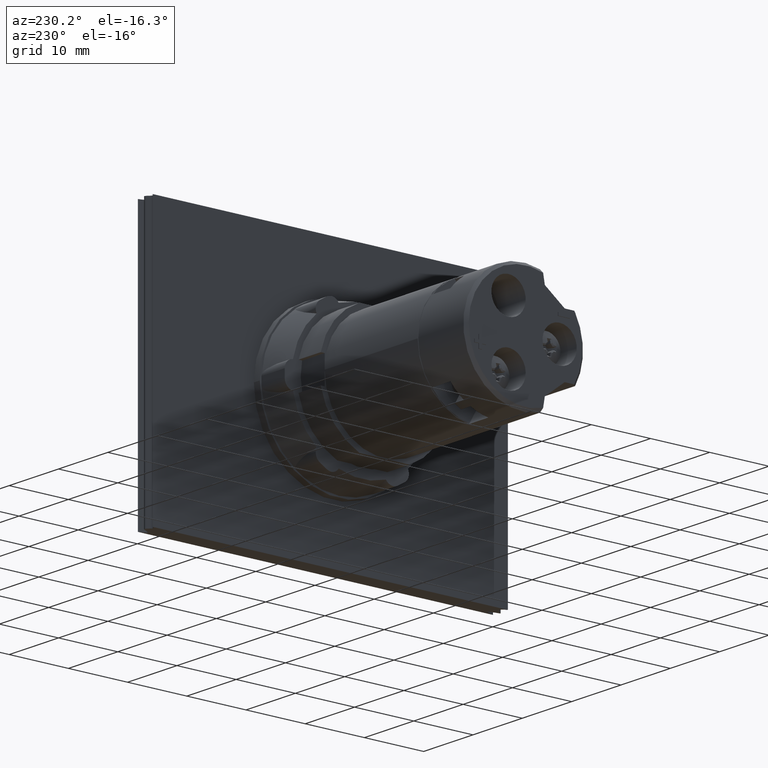
[diagram: clean part render]
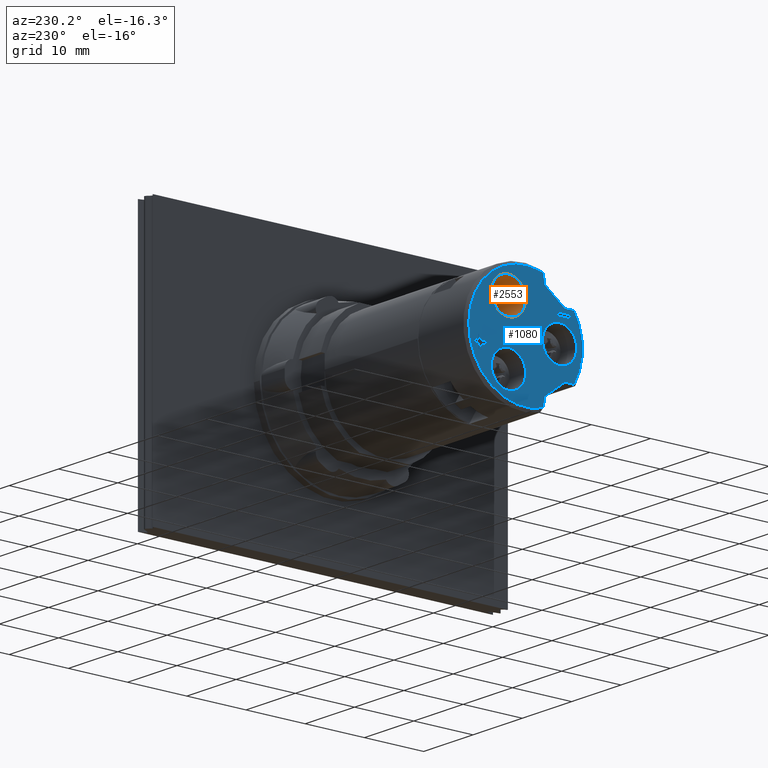
[diagram: same view with the hole feature highlighted: cylindrical wall and planar end face, labeled with their STEP entity ids]
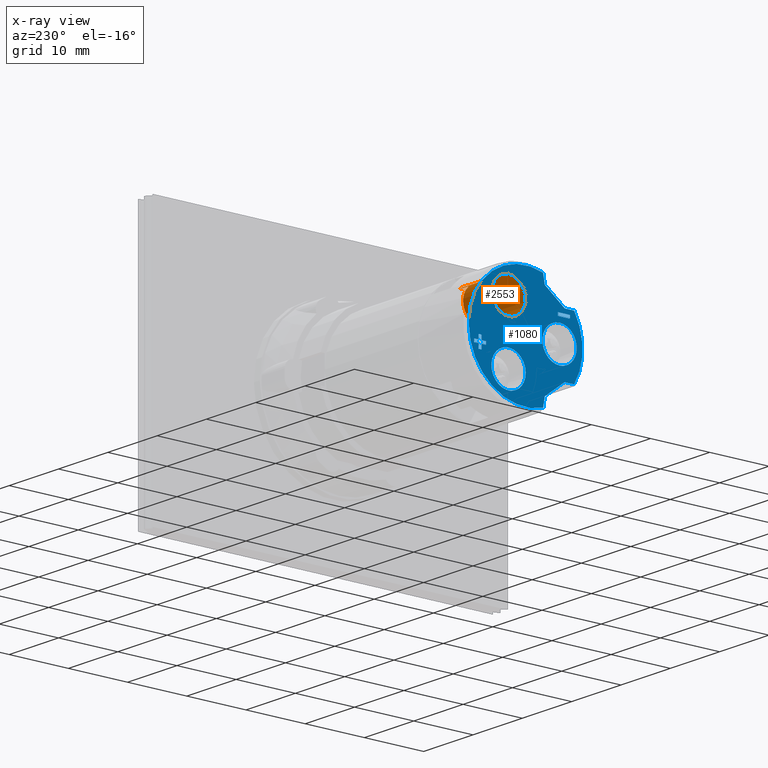
[diagram: x-ray of the same camera — body ghosted, the hole faces saturated]
A machine part, auxiliary view. The highlighted faces form one hole feature of diameter 5.8 mm: the cylindrical wall (entity #2553, orange) and its adjacent planar end face (entity #1080, blue) — they share a circular edge in the B-rep.
The next image is the same camera in x-ray (body ghosted, the hole faces saturated) — the bore reads through the body.
Wall:
#1058=CARTESIAN_POINT('',(-43.122597079042571,5.314369067198075,2.943179130196207));
#1059=VERTEX_POINT('',#1058);
#1060=CARTESIAN_POINT('',(-43.122597079042571,3.249713552126450,4.979646071760523));
#1061=DIRECTION('',(1.0,0.0,0.0));
#1062=DIRECTION('',(0.0,0.0,1.0));
#1063=AXIS2_PLACEMENT_3D('',#1060,#1061,#1062);
#1064=CIRCLE('',#1063,2.900000000000000);
#1065=EDGE_CURVE('',#1059,#1059,#1064,.T.);
#1287=CARTESIAN_POINT('',(-37.372597079040830,5.187954890309383,7.136778546820604));
#1288=VERTEX_POINT('',#1287);
#1289=CARTESIAN_POINT('',(-35.472597079040831,5.187954890309220,7.136778546820750));
#1290=VERTEX_POINT('',#1289);
#1291=CARTESIAN_POINT('',(-37.372597079040830,5.187954890309383,7.136778546820604));
#1292=DIRECTION('',(1.0,0.0,0.0));
#1293=VECTOR('',#1292,1.899999999999999);
#1294=LINE('',#1291,#1293);
#1295=EDGE_CURVE('',#1288,#1290,#1294,.T.);
#1327=CARTESIAN_POINT('',(-35.472597079041940,2.350702698487272,2.222513596698986));
#1328=VERTEX_POINT('',#1327);
#1329=CARTESIAN_POINT('',(-37.372597079041931,2.350702698487480,2.222513596698918));
#1330=VERTEX_POINT('',#1329);
#1331=CARTESIAN_POINT('',(-35.472597079041940,2.350702698487272,2.222513596698986));
#1332=DIRECTION('',(-1.0,1.091525E-013,-3.576087E-014));
#1333=VECTOR('',#1332,1.899999999999992);
#1334=LINE('',#1331,#1333);
#1335=EDGE_CURVE('',#1328,#1330,#1334,.T.);
#1358=CARTESIAN_POINT('',(-35.472597079040966,4.148724405768168,7.736778546821230));
#1359=VERTEX_POINT('',#1358);
#1360=CARTESIAN_POINT('',(-37.372597079040958,4.148724405768375,7.736778546821163));
#1361=VERTEX_POINT('',#1360);
#1362=CARTESIAN_POINT('',(-35.472597079040966,4.148724405768168,7.736778546821230));
#1363=DIRECTION('',(-1.0,1.089187E-013,-3.552714E-014));
#1364=VECTOR('',#1363,1.899999999999992);
#1365=LINE('',#1362,#1364);
#1366=EDGE_CURVE('',#1359,#1361,#1365,.T.);
#1398=CARTESIAN_POINT('',(-37.372597079042073,1.311472213945830,2.822513596698363));
#1399=VERTEX_POINT('',#1398);
#1400=CARTESIAN_POINT('',(-35.472597079042075,1.311472213945668,2.822513596698508));
#1401=VERTEX_POINT('',#1400);
#1402=CARTESIAN_POINT('',(-37.372597079042073,1.311472213945830,2.822513596698363));
#1403=DIRECTION('',(1.0,0.0,0.0));
#1404=VECTOR('',#1403,1.899999999999999);
#1405=LINE('',#1402,#1404);
#1406=EDGE_CURVE('',#1399,#1401,#1405,.T.);
#1429=CARTESIAN_POINT('',(-35.472597079040533,3.249713552126450,4.979646071760523));
#1430=DIRECTION('',(1.0,-1.985831E-013,0.0));
#1431=DIRECTION('',(0.0,0.0,1.0));
#1432=AXIS2_PLACEMENT_3D('',#1429,#1430,#1431);
#1433=CIRCLE('',#1432,2.900000000000000);
#1434=EDGE_CURVE('',#1290,#1359,#1433,.T.);
#1453=CARTESIAN_POINT('',(-35.472597079040533,3.249713552126450,4.979646071760523));
#1454=DIRECTION('',(1.0,-1.985831E-013,0.0));
#1455=DIRECTION('',(0.0,0.0,1.0));
#1456=AXIS2_PLACEMENT_3D('',#1453,#1454,#1455);
#1457=CIRCLE('',#1456,2.900000000000000);
#1458=EDGE_CURVE('',#1401,#1328,#1457,.T.);
#1582=CARTESIAN_POINT('',(-37.372597079040531,3.249713552126450,4.979646071760523));
#1583=DIRECTION('',(1.0,-1.953782E-013,0.0));
#1584=DIRECTION('',(0.0,0.0,1.0));
#1585=AXIS2_PLACEMENT_3D('',#1582,#1583,#1584);
#1586=CIRCLE('',#1585,2.900000000000000);
#1587=EDGE_CURVE('',#1330,#1288,#1586,.T.);
#1938=CARTESIAN_POINT('',(-37.372597079040666,3.249713552126450,4.979646071760523));
#1939=DIRECTION('',(1.0,-1.953782E-013,0.0));
#1940=DIRECTION('',(0.0,0.0,1.0));
#1941=AXIS2_PLACEMENT_3D('',#1938,#1939,#1940);
#1942=CIRCLE('',#1941,2.900000000000000);
#1943=EDGE_CURVE('',#1361,#1399,#1942,.T.);
#2535=CARTESIAN_POINT('',(-43.122597079042571,3.249713552126450,4.979646071760523));
#2536=DIRECTION('',(1.0,0.0,0.0));
#2537=DIRECTION('',(0.0,0.0,1.0));
#2538=AXIS2_PLACEMENT_3D('',#2535,#2536,#2537);
#2539=CYLINDRICAL_SURFACE('',#2538,2.900000000000000);
#2540=ORIENTED_EDGE('',*,*,#1295,.T.);
#2541=ORIENTED_EDGE('',*,*,#1434,.T.);
#2542=ORIENTED_EDGE('',*,*,#1366,.T.);
#2543=ORIENTED_EDGE('',*,*,#1943,.T.);
#2544=ORIENTED_EDGE('',*,*,#1406,.T.);
#2545=ORIENTED_EDGE('',*,*,#1458,.T.);
#2546=ORIENTED_EDGE('',*,*,#1335,.T.);
#2547=ORIENTED_EDGE('',*,*,#1587,.T.);
#2548=EDGE_LOOP('',(#2540,#2541,#2542,#2543,#2544,#2545,#2546,#2547));
#2549=FACE_OUTER_BOUND('',#2548,.T.);
#2550=ORIENTED_EDGE('',*,*,#1065,.F.);
#2551=EDGE_LOOP('',(#2550));
#2552=FACE_BOUND('',#2551,.T.);
#2553=ADVANCED_FACE('',(#2549,#2552),#2539,.F.);
End face:
#153=CARTESIAN_POINT('',(-43.122597079042571,-5.077700565510162,4.261579395205214));
#154=VERTEX_POINT('',#153);
#161=CARTESIAN_POINT('',(-43.122597079042571,-5.077700565510162,3.761579395205214));
#162=VERTEX_POINT('',#161);
#163=CARTESIAN_POINT('',(-43.122597079042571,-5.077700565510162,3.761579395205214));
#164=DIRECTION('',(0.0,0.0,1.0));
#165=VECTOR('',#164,0.500000000000000);
#166=LINE('',#163,#165);
#167=EDGE_CURVE('',#162,#154,#166,.T.);
#184=CARTESIAN_POINT('',(-43.122597079042571,-7.077700565510162,4.261579395205214));
#185=VERTEX_POINT('',#184);
#192=CARTESIAN_POINT('',(-43.122597079042571,-5.077700565510162,4.261579395205214));
#193=DIRECTION('',(0.0,-1.0,0.0));
#194=VECTOR('',#193,2.0);
#195=LINE('',#192,#194);
#196=EDGE_CURVE('',#154,#185,#195,.T.);
#208=CARTESIAN_POINT('',(-43.122597079042571,-7.077700565510162,3.761579395205215));
#209=VERTEX_POINT('',#208);
#216=CARTESIAN_POINT('',(-43.122597079042571,-7.077700565510162,4.261579395205214));
#217=DIRECTION('',(0.0,0.0,-1.0));
#218=VECTOR('',#217,0.499999999999999);
#219=LINE('',#216,#218);
#220=EDGE_CURVE('',#185,#209,#219,.T.);
#233=CARTESIAN_POINT('',(-43.122597079042571,-7.077700565510162,3.761579395205215));
#234=DIRECTION('',(0.0,1.0,0.0));
#235=VECTOR('',#234,2.0);
#236=LINE('',#233,#235);
#237=EDGE_CURVE('',#209,#162,#236,.T.);
#258=CARTESIAN_POINT('',(-43.122597079042571,8.316991298642124,-1.939546860514058));
#259=VERTEX_POINT('',#258);
#266=CARTESIAN_POINT('',(-43.122597079042571,9.066991298642124,-1.939546860514059));
#267=VERTEX_POINT('',#266);
#268=CARTESIAN_POINT('',(-43.122597079042571,9.066991298642124,-1.939546860514059));
#269=DIRECTION('',(0.0,-1.0,0.0));
#270=VECTOR('',#269,0.750000000000000);
#271=LINE('',#268,#270);
#272=EDGE_CURVE('',#267,#259,#271,.T.);
#297=CARTESIAN_POINT('',(-43.122597079042571,9.066991298642124,-2.439546860514056));
#298=VERTEX_POINT('',#297);
#299=CARTESIAN_POINT('',(-43.122597079042571,9.066991298642124,-2.439546860514056));
#300=DIRECTION('',(0.0,0.0,1.0));
#301=VECTOR('',#300,0.499999999999997);
#302=LINE('',#299,#301);
#303=EDGE_CURVE('',#298,#267,#302,.T.);
#328=CARTESIAN_POINT('',(-43.122597079042571,8.316991298642124,-2.439546860514056));
#329=VERTEX_POINT('',#328);
#330=CARTESIAN_POINT('',(-43.122597079042571,8.316991298642124,-2.439546860514056));
#331=DIRECTION('',(0.0,1.0,0.0));
#332=VECTOR('',#331,0.750000000000000);
#333=LINE('',#330,#332);
#334=EDGE_CURVE('',#329,#298,#333,.T.);
#359=CARTESIAN_POINT('',(-43.122597079042571,8.316991298642124,-3.189546860514057));
#360=VERTEX_POINT('',#359);
#361=CARTESIAN_POINT('',(-43.122597079042571,8.316991298642124,-3.189546860514057));
#362=DIRECTION('',(0.0,0.0,1.0));
#363=VECTOR('',#362,0.750000000000002);
#364=LINE('',#361,#363);
#365=EDGE_CURVE('',#360,#329,#364,.T.);
#390=CARTESIAN_POINT('',(-43.122597079042571,7.816991298642124,-3.189546860514056));
#391=VERTEX_POINT('',#390);
#392=CARTESIAN_POINT('',(-43.122597079042571,7.816991298642124,-3.189546860514056));
#393=DIRECTION('',(0.0,1.0,0.0));
#394=VECTOR('',#393,0.500000000000000);
#395=LINE('',#392,#394);
#396=EDGE_CURVE('',#391,#360,#395,.T.);
#421=CARTESIAN_POINT('',(-43.122597079042571,7.816991298642124,-2.439546860514057));
#422=VERTEX_POINT('',#421);
#423=CARTESIAN_POINT('',(-43.122597079042571,7.816991298642124,-2.439546860514057));
#424=DIRECTION('',(0.0,0.0,-1.0));
#425=VECTOR('',#424,0.749999999999999);
#426=LINE('',#423,#425);
#427=EDGE_CURVE('',#422,#391,#426,.T.);
#452=CARTESIAN_POINT('',(-43.122597079042571,7.066991298642124,-2.439546860514057));
#453=VERTEX_POINT('',#452);
#454=CARTESIAN_POINT('',(-43.122597079042571,7.066991298642124,-2.439546860514057));
#455=DIRECTION('',(0.0,1.0,0.0));
#456=VECTOR('',#455,0.750000000000000);
#457=LINE('',#454,#456);
#458=EDGE_CURVE('',#453,#422,#457,.T.);
#483=CARTESIAN_POINT('',(-43.122597079042571,7.066991298642124,-1.939546860514056));
#484=VERTEX_POINT('',#483);
#485=CARTESIAN_POINT('',(-43.122597079042571,7.066991298642124,-1.939546860514056));
#486=DIRECTION('',(0.0,0.0,-1.0));
#487=VECTOR('',#486,0.500000000000000);
#488=LINE('',#485,#487);
#489=EDGE_CURVE('',#484,#453,#488,.T.);
#514=CARTESIAN_POINT('',(-43.122597079042571,7.816991298642124,-1.939546860514058));
#515=VERTEX_POINT('',#514);
#516=CARTESIAN_POINT('',(-43.122597079042571,7.816991298642124,-1.939546860514058));
#517=DIRECTION('',(0.0,-1.0,0.0));
#518=VECTOR('',#517,0.750000000000000);
#519=LINE('',#516,#518);
#520=EDGE_CURVE('',#515,#484,#519,.T.);
#545=CARTESIAN_POINT('',(-43.122597079042571,7.816991298642124,-1.189546860514057));
#546=VERTEX_POINT('',#545);
#547=CARTESIAN_POINT('',(-43.122597079042571,7.816991298642124,-1.189546860514057));
#548=DIRECTION('',(0.0,0.0,-1.0));
#549=VECTOR('',#548,0.750000000000001);
#550=LINE('',#547,#549);
#551=EDGE_CURVE('',#546,#515,#550,.T.);
#576=CARTESIAN_POINT('',(-43.122597079042571,8.316991298642124,-1.189546860514057));
#577=VERTEX_POINT('',#576);
#578=CARTESIAN_POINT('',(-43.122597079042571,8.316991298642124,-1.189546860514057));
#579=DIRECTION('',(0.0,-1.0,0.0));
#580=VECTOR('',#579,0.500000000000000);
#581=LINE('',#578,#580);
#582=EDGE_CURVE('',#577,#546,#581,.T.);
#605=CARTESIAN_POINT('',(-43.122597079042571,8.316991298642124,-1.939546860514058));
#606=DIRECTION('',(0.0,0.0,1.0));
#607=VECTOR('',#606,0.750000000000001);
#608=LINE('',#605,#607);
#609=EDGE_CURVE('',#259,#577,#608,.T.);
#640=CARTESIAN_POINT('',(-43.122597079042571,-7.832341157952934,-4.980386830936121));
#641=VERTEX_POINT('',#640);
#657=CARTESIAN_POINT('',(-43.122597079042571,-6.240128254737982,-4.980386830936121));
#658=VERTEX_POINT('',#657);
#659=CARTESIAN_POINT('',(-43.122597079042571,-6.240128254737982,-4.980386830936121));
#660=DIRECTION('',(0.0,-1.0,0.0));
#661=VECTOR('',#660,1.592212903214952);
#662=LINE('',#659,#661);
#663=EDGE_CURVE('',#658,#641,#662,.T.);
#737=CARTESIAN_POINT('',(-43.122597079042571,-2.872708961017791,-7.536476785324715));
#738=VERTEX_POINT('',#737);
#739=CARTESIAN_POINT('',(-43.122597079042571,-2.872708961017791,-7.536476785324715));
#740=DIRECTION('',(0.0,-0.796520851439320,0.604611059460857));
#741=VECTOR('',#740,4.227659938387344);
#742=LINE('',#739,#741);
#743=EDGE_CURVE('',#738,#658,#742,.T.);
#761=CARTESIAN_POINT('',(-43.122597079042571,-2.591693759520300,-9.130193188613637));
#762=VERTEX_POINT('',#761);
#792=CARTESIAN_POINT('',(-43.122597079042571,-2.591693759520300,-9.130193188613637));
#793=DIRECTION('',(0.0,-0.173648177666931,0.984807753012208));
#794=VECTOR('',#793,1.618302047698406);
#795=LINE('',#792,#794);
#796=EDGE_CURVE('',#762,#738,#795,.T.);
#806=CARTESIAN_POINT('',(-43.122597079042571,-2.591693759520300,9.130193188613637));
#807=VERTEX_POINT('',#806);
#823=CARTESIAN_POINT('',(-43.122597079042571,-2.872708961017791,7.536476785324715));
#824=VERTEX_POINT('',#823);
#825=CARTESIAN_POINT('',(-43.122597079042571,-2.872708961017791,7.536476785324715));
#826=DIRECTION('',(0.0,0.173648177666931,0.984807753012208));
#827=VECTOR('',#826,1.618302047698406);
#828=LINE('',#825,#827);
#829=EDGE_CURVE('',#824,#807,#828,.T.);
#903=CARTESIAN_POINT('',(-43.122597079042571,-6.240128254737982,4.980386830936121));
#904=VERTEX_POINT('',#903);
#905=CARTESIAN_POINT('',(-43.122597079042571,-6.240128254737982,4.980386830936121));
#906=DIRECTION('',(0.0,0.796520851439320,0.604611059460857));
#907=VECTOR('',#906,4.227659938387344);
#908=LINE('',#905,#907);
#909=EDGE_CURVE('',#904,#824,#908,.T.);
#927=CARTESIAN_POINT('',(-43.122597079042571,-7.832341157952934,4.980386830936121));
#928=VERTEX_POINT('',#927);
#958=CARTESIAN_POINT('',(-43.122597079042571,-7.832341157952934,4.980386830936121));
#959=DIRECTION('',(0.0,1.0,0.0));
#960=VECTOR('',#959,1.592212903214952);
#961=LINE('',#958,#960);
#962=EDGE_CURVE('',#928,#904,#961,.T.);
#1000=CARTESIAN_POINT('',(-43.122597079042571,5.424713552126406,0.0));
#1001=DIRECTION('',(-1.0,0.0,0.0));
#1002=DIRECTION('',(0.0,0.0,1.0));
#1003=AXIS2_PLACEMENT_3D('',#1000,#1001,#1002);
#1004=PLANE('',#1003);
#1005=ORIENTED_EDGE('',*,*,#796,.T.);
#1006=ORIENTED_EDGE('',*,*,#743,.T.);
#1007=ORIENTED_EDGE('',*,*,#663,.T.);
#1008=CARTESIAN_POINT('',(-43.122597079042571,0.374713552126451,0.0));
#1009=DIRECTION('',(1.0,0.0,0.0));
#1010=DIRECTION('',(0.0,-1.0,0.0));
#1011=AXIS2_PLACEMENT_3D('',#1008,#1009,#1010);
#1012=CIRCLE('',#1011,9.599999999999909);
#1013=EDGE_CURVE('',#928,#641,#1012,.T.);
#1014=ORIENTED_EDGE('',*,*,#1013,.F.);
#1015=ORIENTED_EDGE('',*,*,#962,.T.);
#1016=ORIENTED_EDGE('',*,*,#909,.T.);
#1017=ORIENTED_EDGE('',*,*,#829,.T.);
#1018=CARTESIAN_POINT('',(-43.122597079042571,0.374713552126451,0.0));
#1019=DIRECTION('',(1.0,0.0,0.0));
#1020=DIRECTION('',(0.0,-1.0,0.0));
#1021=AXIS2_PLACEMENT_3D('',#1018,#1019,#1020);
#1022=CIRCLE('',#1021,9.599999999999909);
#1023=EDGE_CURVE('',#762,#807,#1022,.T.);
#1024=ORIENTED_EDGE('',*,*,#1023,.F.);
#1025=EDGE_LOOP('',(#1005,#1006,#1007,#1014,#1015,#1016,#1017,#1024));
#1026=FACE_OUTER_BOUND('',#1025,.T.);
#1027=ORIENTED_EDGE('',*,*,#167,.T.);
#1028=ORIENTED_EDGE('',*,*,#196,.T.);
#1029=ORIENTED_EDGE('',*,*,#220,.T.);
#1030=ORIENTED_EDGE('',*,*,#237,.T.);
#1031=EDGE_LOOP('',(#1027,#1028,#1029,#1030));
#1032=FACE_BOUND('',#1031,.T.);
#1033=ORIENTED_EDGE('',*,*,#272,.T.);
#1034=ORIENTED_EDGE('',*,*,#609,.T.);
#1035=ORIENTED_EDGE('',*,*,#582,.T.);
#1036=ORIENTED_EDGE('',*,*,#551,.T.);
#1037=ORIENTED_EDGE('',*,*,#520,.T.);
#1038=ORIENTED_EDGE('',*,*,#489,.T.);
#1039=ORIENTED_EDGE('',*,*,#458,.T.);
#1040=ORIENTED_EDGE('',*,*,#427,.T.);
#1041=ORIENTED_EDGE('',*,*,#396,.T.);
#1042=ORIENTED_EDGE('',*,*,#365,.T.);
#1043=ORIENTED_EDGE('',*,*,#334,.T.);
#1044=ORIENTED_EDGE('',*,*,#303,.T.);
#1045=EDGE_LOOP('',(#1033,#1034,#1035,#1036,#1037,#1038,#1039,#1040,#1041,#1042,#1043,#1044));
#1046=FACE_BOUND('',#1045,.T.);
#1047=CARTESIAN_POINT('',(-43.122597079042571,5.314369067198077,-2.943179130196202));
#1048=VERTEX_POINT('',#1047);
#1049=CARTESIAN_POINT('',(-43.122597079042571,3.249713552126456,-4.979646071760521));
#1050=DIRECTION('',(1.0,0.0,0.0));
#1051=DIRECTION('',(0.0,0.0,1.0));
#1052=AXIS2_PLACEMENT_3D('',#1049,#1050,#1051);
#1053=CIRCLE('',#1052,2.900000000000000);
#1054=EDGE_CURVE('',#1048,#1048,#1053,.T.);
#1055=ORIENTED_EDGE('',*,*,#1054,.T.);
#1056=EDGE_LOOP('',(#1055));
#1057=FACE_BOUND('',#1056,.T.);
#1058=CARTESIAN_POINT('',(-43.122597079042571,5.314369067198075,2.943179130196207));
#1059=VERTEX_POINT('',#1058);
#1060=CARTESIAN_POINT('',(-43.122597079042571,3.249713552126450,4.979646071760523));
#1061=DIRECTION('',(1.0,0.0,0.0));
#1062=DIRECTION('',(0.0,0.0,1.0));
#1063=AXIS2_PLACEMENT_3D('',#1060,#1061,#1062);
#1064=CIRCLE('',#1063,2.900000000000000);
#1065=EDGE_CURVE('',#1059,#1059,#1064,.T.);
#1066=ORIENTED_EDGE('',*,*,#1065,.T.);
#1067=EDGE_LOOP('',(#1066));
#1068=FACE_BOUND('',#1067,.T.);
#1069=CARTESIAN_POINT('',(-43.122597079042571,-4.643982100047462,2.806277596897831));
#1070=VERTEX_POINT('',#1069);
#1071=CARTESIAN_POINT('',(-43.122597079042571,-5.375286447873549,0.0));
#1072=DIRECTION('',(1.0,0.0,0.0));
#1073=DIRECTION('',(0.0,0.0,1.0));
#1074=AXIS2_PLACEMENT_3D('',#1071,#1072,#1073);
#1075=CIRCLE('',#1074,2.900000000000000);
#1076=EDGE_CURVE('',#1070,#1070,#1075,.T.);
#1077=ORIENTED_EDGE('',*,*,#1076,.T.);
#1078=EDGE_LOOP('',(#1077));
#1079=FACE_BOUND('',#1078,.T.);
#1080=ADVANCED_FACE('',(#1026,#1032,#1046,#1057,#1068,#1079),#1004,.T.);